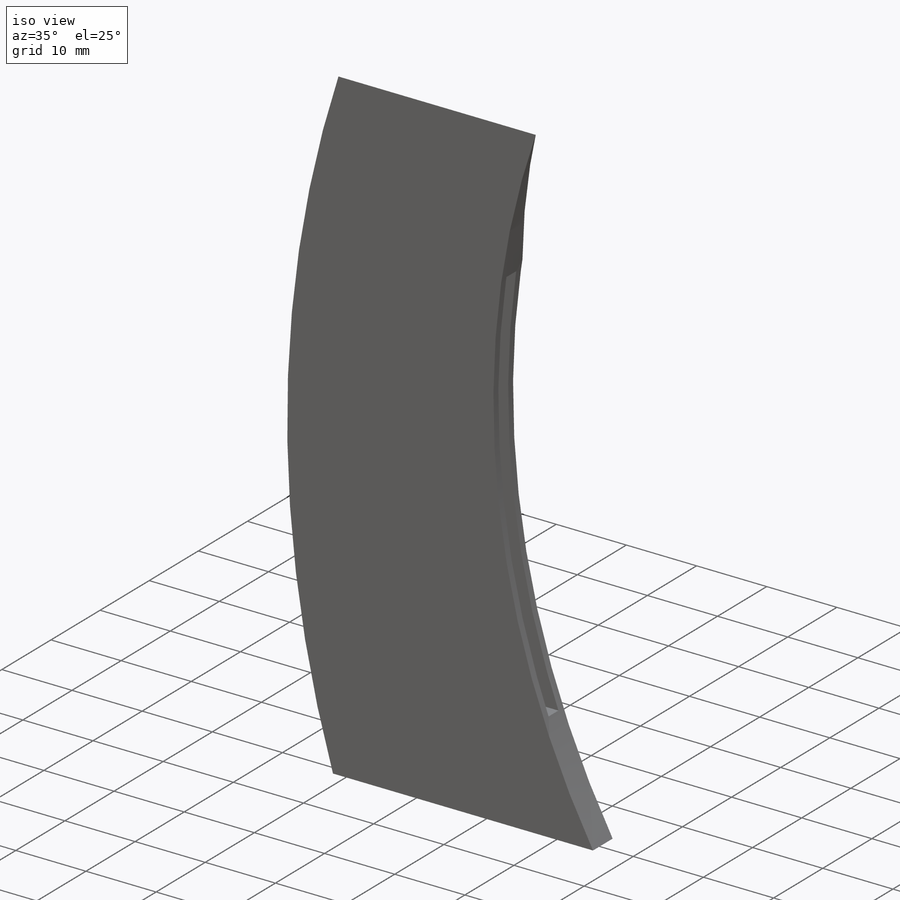
[diagram: iso view]
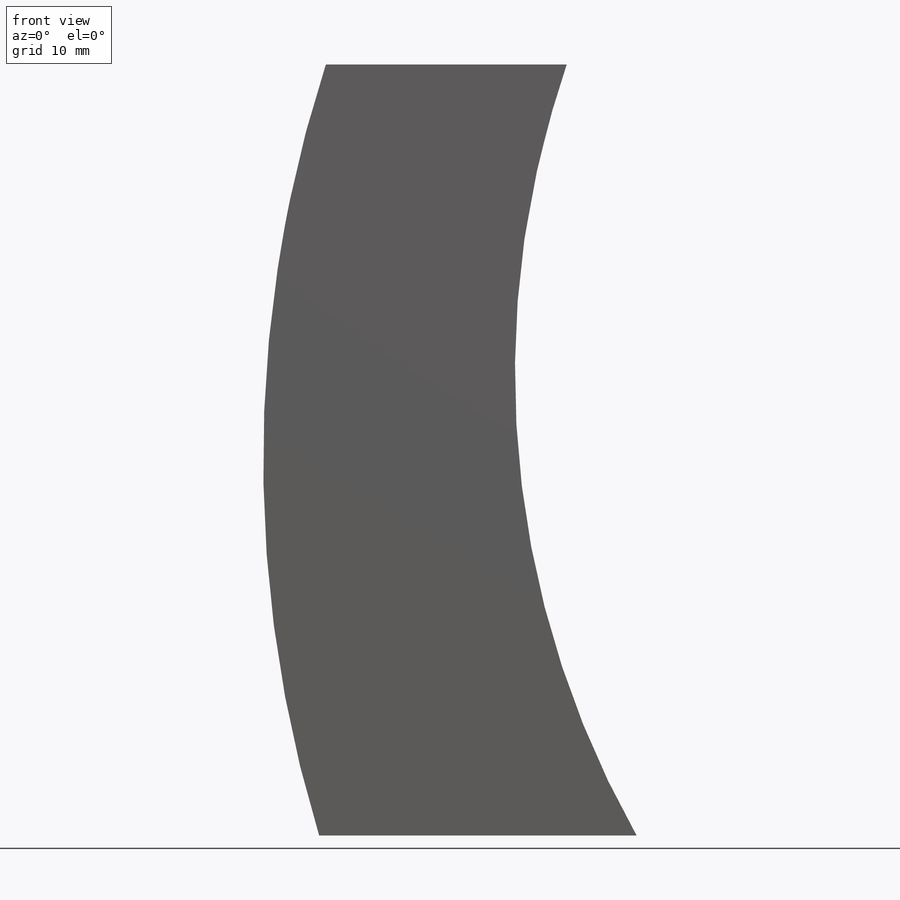
[diagram: front view]
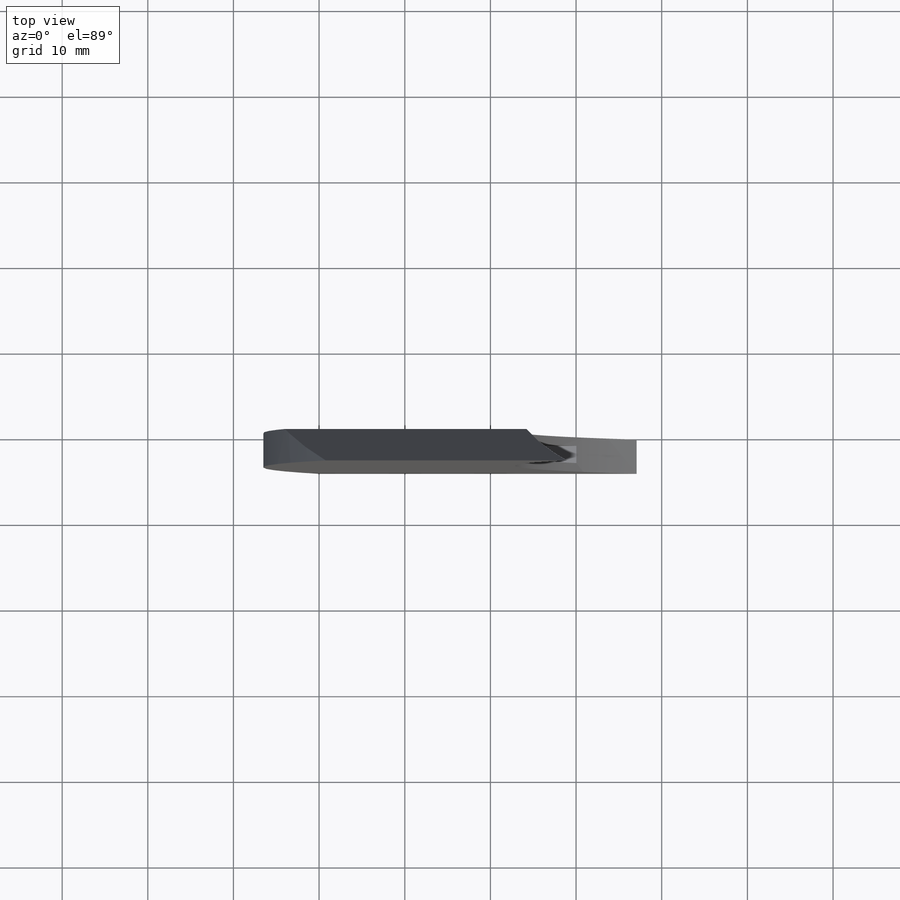
[diagram: top view]
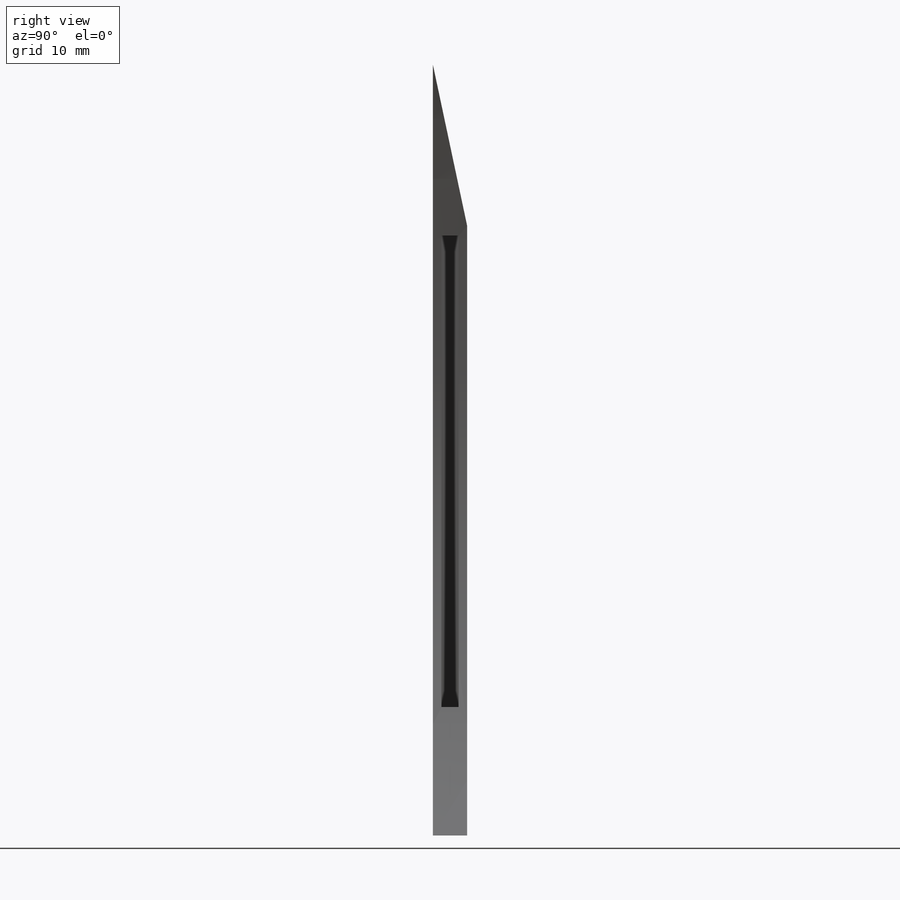
[diagram: right view]
SOLIDWORKS PART (.sldprt)
format: sldprt  version: not decoded by parser v0  size: 225,280 bytes
history: native  units: mm
features: plane x4, sketch x3, cut_extrude x2, material x1, extrude x1 (+9 scaffold rows collapsed)
feature tree (20):
  scaffold x9  (default folders/planes/origin — collapsed)
  material  "材质 <未指定>"
  plane  "前视基准面"
  plane  "上视基准面"
  plane  "右视基准面"
  sketch  "草图1"  dims[c1.D5=80.0mm c1.D6=80.0mm c1.D7=90.0mm c1.D8=~25.154438mm c2.D7=50.0mm c2.D8=70.0mm c3.D7=~59.303146mm c3.D8=~83.332434mm c3.D10=110.0mm c3.D11=20.0mm c3.D12=6.0mm c3.D15=6.0mm c3.D17=137.0mm c3.D19=150.0mm c3.D20=150.0mm c3.D4=6.0mm c3.D1=31.87mm c3.D2=~17.85651mm c4.D1=150.0mm c4.D2=60.0mm c4.D3=20.0mm c4.D4=40.0mm c5.D1=40.0mm c5.D2=~44.72136mm c6.D1=30.0mm c6.D2=60.0mm c6.D3=15.0mm c6.D4=180.0mm c6.D9=20.0mm c6.D10=10.0mm c6.D11=15.0mm c6.D7=10.0mm c7.D9=10.0mm c7.D7=10.0mm c8.D9=10.0mm c8.D10=~95.493233mm c8.D8=10.0mm c8.D11=~151.114562mm c8.D13=10.0mm c8.D14=~29.569108mm c9.D14=90.0deg c10.D14=10.0mm c10.D16=0.0mm c10.D18=70.0mm c10.D19=122.0mm c10.D20=~7.667587mm c10.D17=10.0mm c11.D18=10.0mm c11.D20=~42.513652mm c11.D3=10.0mm c11.D5=40.0mm c11.D6=~28.373151mm c11.D8=~117.511335mm c12.D3=10.0mm c12.D7=20.0mm c12.D9=110.0mm c12.D6=~28.120764mm c12.D8=90.0mm]
  extrude  "凸台-拉伸1"  Depth=4mm
  sketch  "草图2"  dims[c1.D1=~10.77033mm c2.D1=12.0deg]
  cut_extrude  "切除-拉伸1"  [1 undecoded]
  plane  "基准面1"
  sketch  "草图3"  dims[c1.D1=~53.771703mm c1.D2=~19.497373mm c2.D1=10.0mm c2.D2=5.0mm c2.D3=10.0mm c2.D4=30.0mm c3.D2=55.0mm c3.D5=~21.156558mm c3.D1=20.0mm c3.D3=8.0mm c4.D1=20.0mm]
  cut_extrude  "切除-拉伸2"  Depth=2mm
decode coverage: 5 of 6 modeling features carry decoded parameters
note: ~ marks probable driven/reference dimensions
note: 1 parameter value undecoded
note: suppression state not decoded; provenance and decode notes live in map.json
